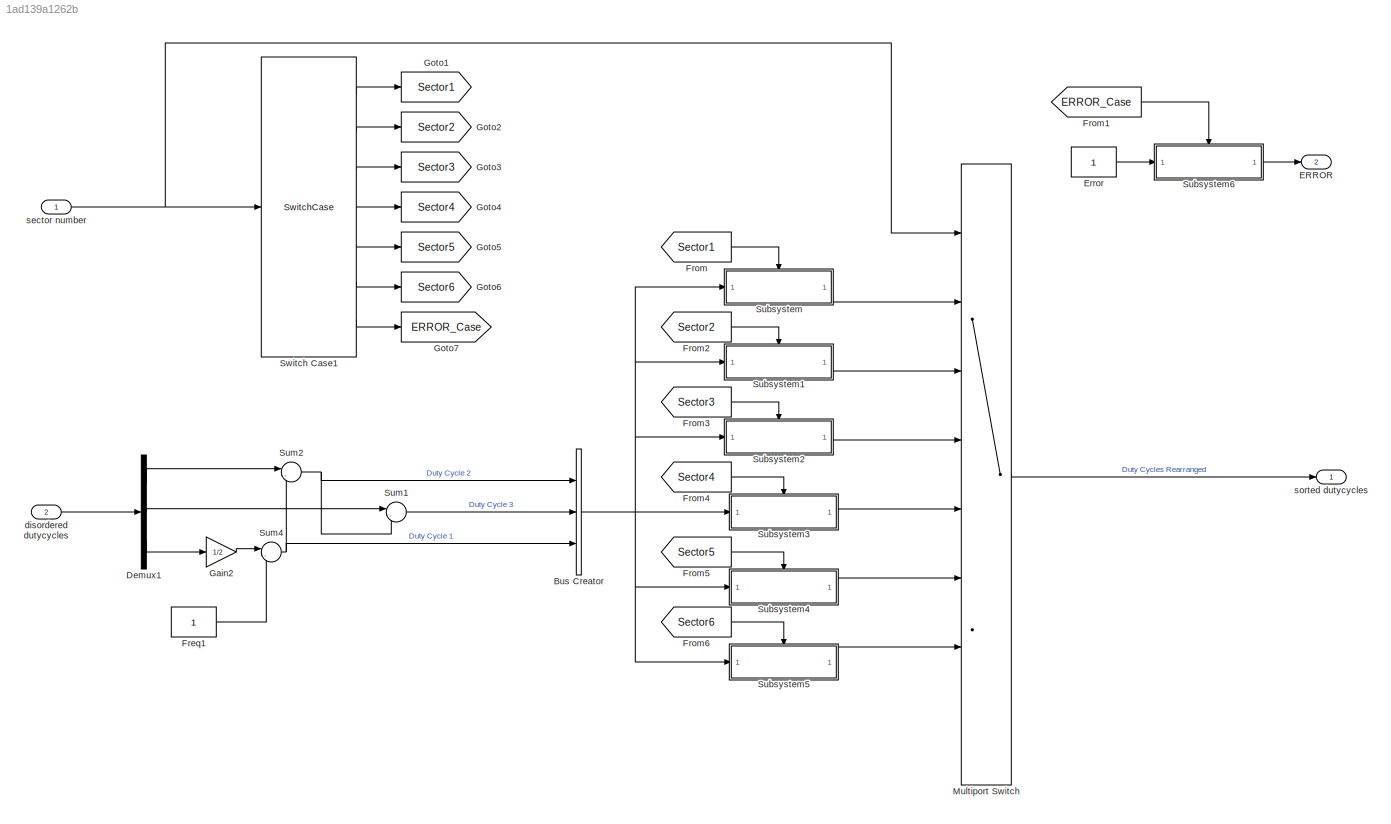
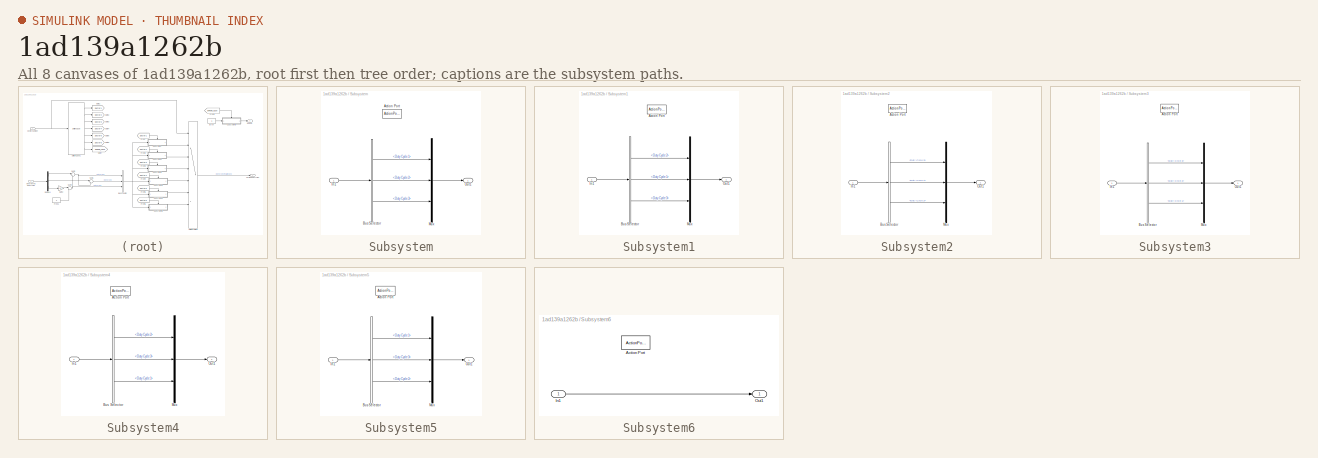
[diagram: thumbnail index - all 8 canvases of the model, root first then tree order]
MODEL slx_1ad139a1262b
KIND model
CONFIG AbsTol = auto
CONFIG EnableMultiTasking = off
CONFIG FixedStep = auto
CONFIG MaxStep = auto
CONFIG MinStep = auto
CONFIG PostLoadFcn = , if any(exist('dsrtsu_mdlpostloadfcn', 'file') == [2, 3, 6]), try dsrtsu_mdlpostloadfcn('Execute', bdroot); catch fprintf('Error in PostLoadFcn (dsrtsu_mdlpostloadfcn) for model "%s":\n %s\n', bdroot, lasterr); end, end, \n
CONFIG RelTol = 1e-3
CONFIG SampleTimeConstraint = Unconstrained
CONFIG Solver = FixedStepAuto
CONFIG SolverName = FixedStepAuto
CONFIG StartTime = 0.0
CONFIG StopTime = inf
BLOCK [BusCreator] Bus Creator
  DisplayOption = bar
  InheritFromInputs = on
  Inputs = 3
  Ports = [3, 1]
BLOCK [Demux] Demux1
  DisplayOption = bar
  Outputs = 3
  Ports = [1, 3]
BLOCK [Outport] ERROR
  IconDisplay = Port number
  Port = 2
BLOCK [Constant] Error
BLOCK [Constant] Freq1
BLOCK [From] From
  GotoTag = Sector1
BLOCK [From] From1
  GotoTag = ERROR_Case
BLOCK [From] From2
  GotoTag = Sector2
BLOCK [From] From3
  GotoTag = Sector3
BLOCK [From] From4
  GotoTag = Sector4
BLOCK [From] From5
  GotoTag = Sector5
BLOCK [From] From6
  GotoTag = Sector6
BLOCK [Gain] Gain2
  Gain = 1/2
  OutDataTypeStr = Inherit: Inherit via internal rule
  ParamDataTypeStr = Inherit: Inherit via internal rule
  SaturateOnIntegerOverflow = off
BLOCK [Goto] Goto1
  GotoTag = Sector1
BLOCK [Goto] Goto2
  GotoTag = Sector2
BLOCK [Goto] Goto3
  GotoTag = Sector3
BLOCK [Goto] Goto4
  GotoTag = Sector4
BLOCK [Goto] Goto5
  GotoTag = Sector5
BLOCK [Goto] Goto6
  GotoTag = Sector6
BLOCK [Goto] Goto7
  GotoTag = ERROR_Case
BLOCK [MultiPortSwitch] Multiport Switch
  InputSameDT = off
  Inputs = 7
  Ports = [8, 1]
  SaturateOnIntegerOverflow = off
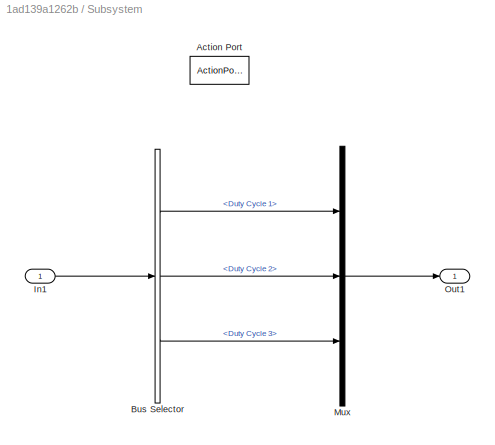
BLOCK [SubSystem] Subsystem
  Ports = [1, 1, 0, 0, 0, 0, 0, 1]
  RequestExecContextInheritance = off
  Variant = off
BLOCK [ActionPort] Subsystem/Action Port
  ActionType = case
BLOCK [BusSelector] Subsystem/Bus Selector
  OutputAsBus = off
  OutputSignals = Duty Cycle 1,Duty Cycle 2,Duty Cycle 3
  Ports = [1, 3]
BLOCK [Inport] Subsystem/In1
  IconDisplay = Port number
BLOCK [Mux] Subsystem/Mux
  DisplayOption = bar
  Inputs = 3
  Ports = [3, 1]
BLOCK [Outport] Subsystem/Out1
  IconDisplay = Port number
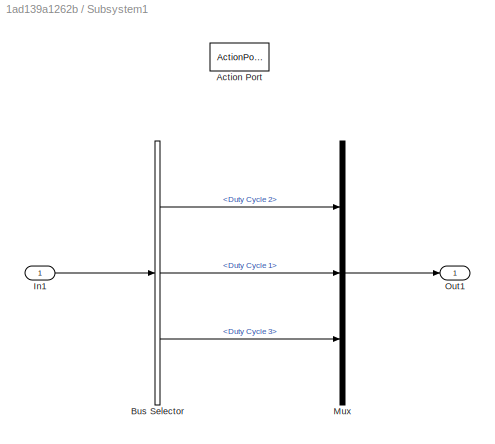
BLOCK [SubSystem] Subsystem1
  Ports = [1, 1, 0, 0, 0, 0, 0, 1]
  RequestExecContextInheritance = off
  Variant = off
BLOCK [ActionPort] Subsystem1/Action Port
  ActionType = case
BLOCK [BusSelector] Subsystem1/Bus Selector
  OutputAsBus = off
  OutputSignals = Duty Cycle 2,Duty Cycle 1,Duty Cycle 3
  Ports = [1, 3]
BLOCK [Inport] Subsystem1/In1
  IconDisplay = Port number
BLOCK [Mux] Subsystem1/Mux
  DisplayOption = bar
  Inputs = 3
  Ports = [3, 1]
BLOCK [Outport] Subsystem1/Out1
  IconDisplay = Port number
BLOCK [SubSystem] Subsystem2
  Ports = [1, 1, 0, 0, 0, 0, 0, 1]
  RequestExecContextInheritance = off
  Variant = off
BLOCK [ActionPort] Subsystem2/Action Port
  ActionType = case
BLOCK [BusSelector] Subsystem2/Bus Selector
  OutputAsBus = off
  OutputSignals = Duty Cycle 3,Duty Cycle 1,Duty Cycle 2
  Ports = [1, 3]
BLOCK [Inport] Subsystem2/In1
  IconDisplay = Port number
BLOCK [Mux] Subsystem2/Mux
  DisplayOption = bar
  Inputs = 3
  Ports = [3, 1]
BLOCK [Outport] Subsystem2/Out1
  IconDisplay = Port number
BLOCK [SubSystem] Subsystem3
  Ports = [1, 1, 0, 0, 0, 0, 0, 1]
  RequestExecContextInheritance = off
  Variant = off
BLOCK [ActionPort] Subsystem3/Action Port
  ActionType = case
BLOCK [BusSelector] Subsystem3/Bus Selector
  OutputAsBus = off
  OutputSignals = Duty Cycle 3,Duty Cycle 2,Duty Cycle 1
  Ports = [1, 3]
BLOCK [Inport] Subsystem3/In1
  IconDisplay = Port number
BLOCK [Mux] Subsystem3/Mux
  DisplayOption = bar
  Inputs = 3
  Ports = [3, 1]
BLOCK [Outport] Subsystem3/Out1
  IconDisplay = Port number
BLOCK [SubSystem] Subsystem4
  Ports = [1, 1, 0, 0, 0, 0, 0, 1]
  RequestExecContextInheritance = off
  Variant = off
BLOCK [ActionPort] Subsystem4/Action Port
  ActionType = case
BLOCK [BusSelector] Subsystem4/Bus Selector
  OutputAsBus = off
  OutputSignals = Duty Cycle 2,Duty Cycle 3,Duty Cycle 1
  Ports = [1, 3]
BLOCK [Inport] Subsystem4/In1
  IconDisplay = Port number
BLOCK [Mux] Subsystem4/Mux
  DisplayOption = bar
  Inputs = 3
  Ports = [3, 1]
BLOCK [Outport] Subsystem4/Out1
  IconDisplay = Port number
BLOCK [SubSystem] Subsystem5
  Ports = [1, 1, 0, 0, 0, 0, 0, 1]
  RequestExecContextInheritance = off
  Variant = off
BLOCK [ActionPort] Subsystem5/Action Port
  ActionType = case
BLOCK [BusSelector] Subsystem5/Bus Selector
  OutputAsBus = off
  OutputSignals = Duty Cycle 1,Duty Cycle 3,Duty Cycle 2
  Ports = [1, 3]
BLOCK [Inport] Subsystem5/In1
  IconDisplay = Port number
BLOCK [Mux] Subsystem5/Mux
  DisplayOption = bar
  Inputs = 3
  Ports = [3, 1]
BLOCK [Outport] Subsystem5/Out1
  IconDisplay = Port number
BLOCK [SubSystem] Subsystem6
  Ports = [1, 1, 0, 0, 0, 0, 0, 1]
  RequestExecContextInheritance = off
  Variant = off
BLOCK [ActionPort] Subsystem6/Action Port
  ActionType = default
BLOCK [Inport] Subsystem6/In1
  IconDisplay = Port number
BLOCK [Outport] Subsystem6/Out1
  IconDisplay = Port number
BLOCK [Sum] Sum1
  IconShape = round
  InputSameDT = off
  Inputs = |-+
  OutDataTypeStr = Inherit: Inherit via internal rule
  Ports = [2, 1]
  SaturateOnIntegerOverflow = off
BLOCK [Sum] Sum2
  IconShape = round
  InputSameDT = off
  Inputs = |-+
  OutDataTypeStr = Inherit: Inherit via internal rule
  Ports = [2, 1]
  SaturateOnIntegerOverflow = off
BLOCK [Sum] Sum4
  IconShape = round
  InputSameDT = off
  Inputs = |-+
  OutDataTypeStr = Inherit: Inherit via internal rule
  Ports = [2, 1]
  SaturateOnIntegerOverflow = off
BLOCK [SwitchCase] Switch Case1
  CaseConditions = {1,2,3,4,5,6}
  Ports = [1, 7]
BLOCK [Inport] disordered dutycycles
  IconDisplay = Port number
  Port = 2
BLOCK [Inport] sector number
  IconDisplay = Port number
BLOCK [Outport] sorted dutycycles
  IconDisplay = Port number
NET Bus Creator:1 -> Subsystem1:1, Subsystem2:1, Subsystem3:1, Subsystem4:1, Subsystem5:1, Subsystem:1
LINE Demux1:1 -> Sum2:1
LINE Demux1:2 -> Sum1:1
LINE Demux1:3 -> Gain2:1
LINE Error:1 -> Subsystem6:1
LINE Freq1:1 -> Sum4:2
LINE From1:1 -> Subsystem6:ifaction
LINE From2:1 -> Subsystem1:ifaction
LINE From3:1 -> Subsystem2:ifaction
LINE From4:1 -> Subsystem3:ifaction
LINE From5:1 -> Subsystem4:ifaction
LINE From6:1 -> Subsystem5:ifaction
LINE From:1 -> Subsystem:ifaction
LINE Gain2:1 -> Sum4:1
LINE Multiport Switch:1 -> sorted dutycycles:1
LINE Subsystem/Bus Selector:1 -> Subsystem/Mux:1
LINE Subsystem/Bus Selector:2 -> Subsystem/Mux:2
LINE Subsystem/Bus Selector:3 -> Subsystem/Mux:3
LINE Subsystem/In1:1 -> Subsystem/Bus Selector:1
LINE Subsystem/Mux:1 -> Subsystem/Out1:1
LINE Subsystem1/Bus Selector:1 -> Subsystem1/Mux:1
LINE Subsystem1/Bus Selector:2 -> Subsystem1/Mux:2
LINE Subsystem1/Bus Selector:3 -> Subsystem1/Mux:3
LINE Subsystem1/In1:1 -> Subsystem1/Bus Selector:1
LINE Subsystem1/Mux:1 -> Subsystem1/Out1:1
LINE Subsystem1:1 -> Multiport Switch:3
LINE Subsystem2/Bus Selector:1 -> Subsystem2/Mux:1
LINE Subsystem2/Bus Selector:2 -> Subsystem2/Mux:2
LINE Subsystem2/Bus Selector:3 -> Subsystem2/Mux:3
LINE Subsystem2/In1:1 -> Subsystem2/Bus Selector:1
LINE Subsystem2/Mux:1 -> Subsystem2/Out1:1
LINE Subsystem2:1 -> Multiport Switch:4
LINE Subsystem3/Bus Selector:1 -> Subsystem3/Mux:1
LINE Subsystem3/Bus Selector:2 -> Subsystem3/Mux:2
LINE Subsystem3/Bus Selector:3 -> Subsystem3/Mux:3
LINE Subsystem3/In1:1 -> Subsystem3/Bus Selector:1
LINE Subsystem3/Mux:1 -> Subsystem3/Out1:1
LINE Subsystem3:1 -> Multiport Switch:5
LINE Subsystem4/Bus Selector:1 -> Subsystem4/Mux:1
LINE Subsystem4/Bus Selector:2 -> Subsystem4/Mux:2
LINE Subsystem4/Bus Selector:3 -> Subsystem4/Mux:3
LINE Subsystem4/In1:1 -> Subsystem4/Bus Selector:1
LINE Subsystem4/Mux:1 -> Subsystem4/Out1:1
LINE Subsystem4:1 -> Multiport Switch:6
LINE Subsystem5/Bus Selector:1 -> Subsystem5/Mux:1
LINE Subsystem5/Bus Selector:2 -> Subsystem5/Mux:2
LINE Subsystem5/Bus Selector:3 -> Subsystem5/Mux:3
LINE Subsystem5/In1:1 -> Subsystem5/Bus Selector:1
LINE Subsystem5/Mux:1 -> Subsystem5/Out1:1
LINE Subsystem5:1 -> Multiport Switch:7
LINE Subsystem6/In1:1 -> Subsystem6/Out1:1
LINE Subsystem6:1 -> ERROR:1
LINE Subsystem:1 -> Multiport Switch:2
LINE Sum1:1 -> Bus Creator:2
NET Sum2:1 -> Bus Creator:1, Sum1:2
NET Sum4:1 -> Bus Creator:3, Sum2:2
LINE Switch Case1:1 -> Goto1:1
LINE Switch Case1:2 -> Goto2:1
LINE Switch Case1:3 -> Goto3:1
LINE Switch Case1:4 -> Goto4:1
LINE Switch Case1:5 -> Goto5:1
LINE Switch Case1:6 -> Goto6:1
LINE Switch Case1:7 -> Goto7:1
LINE disordered dutycycles:1 -> Demux1:1
NET sector number:1 -> Multiport Switch:1, Switch Case1:1
note: NET lines group one-source signal fan-out (src -> all destinations, sorted); 1:1 wires keep LINE
